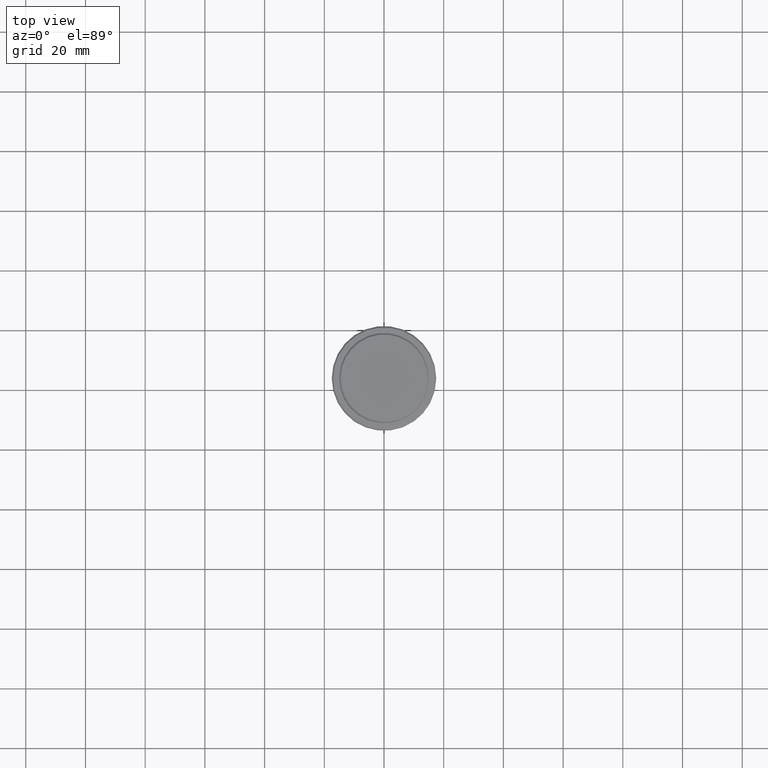
[diagram: clean part render]
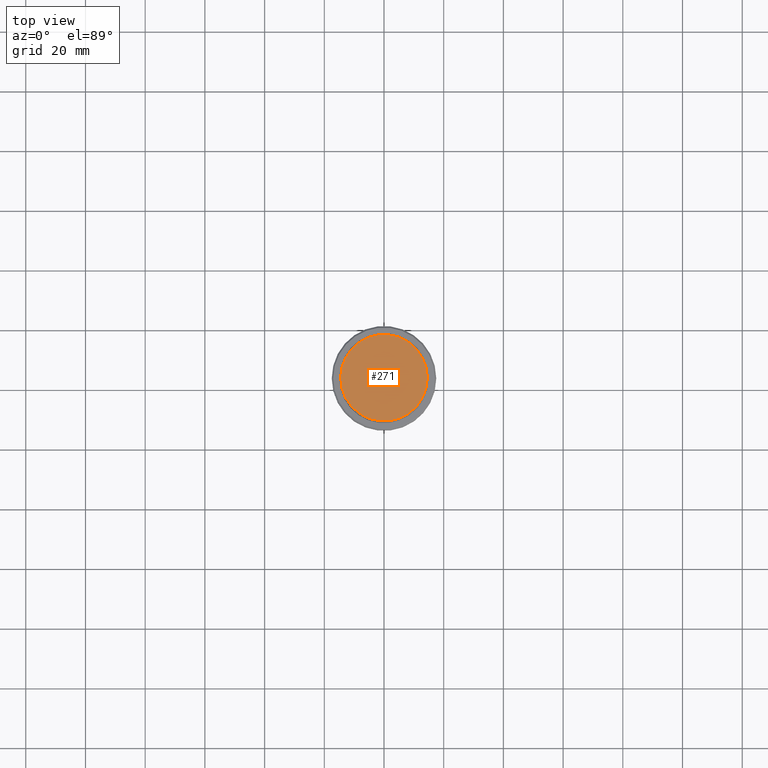
[diagram: same view with one face highlighted and labeled with its STEP entity id]
A machine part, top view. The second image highlights one B-rep face of the part: STEP entity #271.
In plain terms, the highlighted planar face has unit normal (0, -0, 1).
Its self-contained STEP definition (entity closure, byte-faithful):
#43 = DIRECTION ( 'NONE',  ( 1.000000000000000000, 0.000000000000000000, 0.000000000000000000 ) ) ;
#79 = DIRECTION ( 'NONE',  ( -0.000000000000000000, -0.000000000000000000, 1.000000000000000000 ) ) ;
#232 = DIRECTION ( 'NONE',  ( -0.000000000000000000, -0.000000000000000000, 1.000000000000000000 ) ) ;
#258 = CARTESIAN_POINT ( 'NONE',  ( 0.000000000000000000, 0.000000000000000000, 0.000000000000000000 ) ) ;
#271 = ADVANCED_FACE ( 'NONE', ( #448 ), #1321, .T. ) ;
#355 = DIRECTION ( 'NONE',  ( 1.000000000000000000, 0.000000000000000000, 0.000000000000000000 ) ) ;
#395 = ORIENTED_EDGE ( 'NONE', *, *, #1408, .T. ) ;
#433 = VERTEX_POINT ( 'NONE', #602 ) ;
#448 = FACE_OUTER_BOUND ( 'NONE', #1354, .T. ) ;
#583 = DIRECTION ( 'NONE',  ( 0.000000000000000000, -0.000000000000000000, 1.000000000000000000 ) ) ;
#585 = AXIS2_PLACEMENT_3D ( 'NONE', #1382, #79, #956 ) ;
#602 = CARTESIAN_POINT ( 'NONE',  ( -14.49999999999998401, 0.000000000000000000, 0.000000000000000000 ) ) ;
#631 = EDGE_CURVE ( 'NONE', #433, #1340, #984, .T. ) ;
#677 = CARTESIAN_POINT ( 'NONE',  ( 0.000000000000000000, 0.000000000000000000, 0.000000000000000000 ) ) ;
#850 = AXIS2_PLACEMENT_3D ( 'NONE', #677, #232, #355 ) ;
#928 = CARTESIAN_POINT ( 'NONE',  ( 14.49999999999998401, 1.806354028742345013E-15, 0.000000000000000000 ) ) ;
#956 = DIRECTION ( 'NONE',  ( 1.000000000000000000, 0.000000000000000000, 0.000000000000000000 ) ) ;
#984 = CIRCLE ( 'NONE', #850, 14.49999999999998401 ) ;
#1017 = CIRCLE ( 'NONE', #585, 14.49999999999998401 ) ;
#1073 = AXIS2_PLACEMENT_3D ( 'NONE', #258, #583, #43 ) ;
#1299 = ORIENTED_EDGE ( 'NONE', *, *, #631, .T. ) ;
#1321 = PLANE ( 'NONE',  #1073 ) ;
#1340 = VERTEX_POINT ( 'NONE', #928 ) ;
#1354 = EDGE_LOOP ( 'NONE', ( #1299, #395 ) ) ;
#1382 = CARTESIAN_POINT ( 'NONE',  ( 0.000000000000000000, 0.000000000000000000, 0.000000000000000000 ) ) ;
#1408 = EDGE_CURVE ( 'NONE', #1340, #433, #1017, .T. ) ;